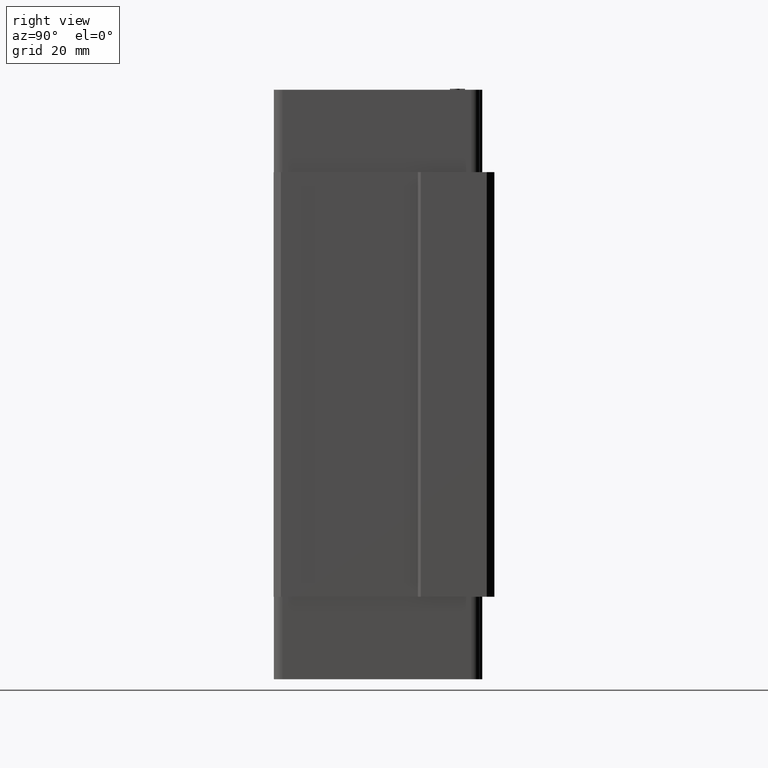
[diagram: clean part render]
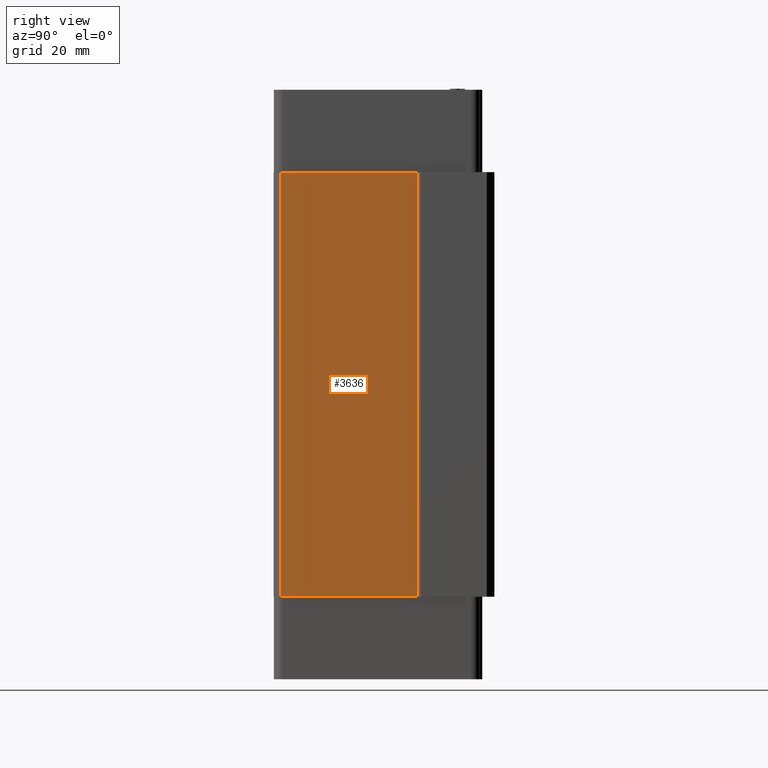
[diagram: same view with one face highlighted and labeled with its STEP entity id]
A machine part, right view. The second image highlights one B-rep face of the part: STEP entity #3636.
In plain terms, the highlighted planar face has unit normal (1, -0, 0).
Its self-contained STEP definition (entity closure, byte-faithful):
#3298 = VERTEX_POINT ( 'NONE', #10669 ) ;
#3301 = EDGE_CURVE ( 'NONE', #3306, #3298, #10664, .T. ) ;
#3306 = VERTEX_POINT ( 'NONE', #10660 ) ;
#3566 = EDGE_LOOP ( 'NONE', ( #3642, #3638, #3637, #3635 ) ) ;
#3588 = VERTEX_POINT ( 'NONE', #11190 ) ;
#3631 = EDGE_CURVE ( 'NONE', #3640, #3298, #11258, .T. ) ;
#3635 = ORIENTED_EDGE ( 'NONE', *, *, #3631, .F. ) ;
#3636 = ADVANCED_FACE ( 'NONE', ( #11248 ), #11247, .T. ) ;
#3637 = ORIENTED_EDGE ( 'NONE', *, *, #3301, .T. ) ;
#3638 = ORIENTED_EDGE ( 'NONE', *, *, #3639, .T. ) ;
#3639 = EDGE_CURVE ( 'NONE', #3588, #3306, #11242, .T. ) ;
#3640 = VERTEX_POINT ( 'NONE', #11238 ) ;
#3641 = EDGE_CURVE ( 'NONE', #3640, #3588, #11237, .T. ) ;
#3642 = ORIENTED_EDGE ( 'NONE', *, *, #3641, .T. ) ;
#10660 = CARTESIAN_POINT ( 'NONE',  ( 62.00000000000052600, 11.00000000000001100, -72.09999999999999400 ) ) ;
#10661 = DIRECTION ( 'NONE',  ( 0.0000000000000000000, 0.0000000000000000000, 1.000000000000000000 ) ) ;
#10662 = VECTOR ( 'NONE', #10661, 1000.000000000000000 ) ;
#10663 = CARTESIAN_POINT ( 'NONE',  ( 62.00000000000210300, 11.00000000000001100, -72.09999999999999400 ) ) ;
#10664 = LINE ( 'NONE', #10663, #10662 ) ;
#10669 = CARTESIAN_POINT ( 'NONE',  ( 62.00000000000052600, 11.00000000000001100, 72.10000000000003700 ) ) ;
#11190 = CARTESIAN_POINT ( 'NONE',  ( 61.99977932547999900, -35.50107541158883600, -72.09999999999999400 ) ) ;
#11234 = DIRECTION ( 'NONE',  ( 0.0000000000000000000, 0.0000000000000000000, -1.000000000000000000 ) ) ;
#11235 = VECTOR ( 'NONE', #11234, 1000.000000000000000 ) ;
#11236 = CARTESIAN_POINT ( 'NONE',  ( 61.99977932547999900, -35.50107541159000800, -72.09999999999999400 ) ) ;
#11237 = LINE ( 'NONE', #11236, #11235 ) ;
#11238 = CARTESIAN_POINT ( 'NONE',  ( 61.99977932548000600, -35.50107541158883600, 72.09999999999999400 ) ) ;
#11239 = DIRECTION ( 'NONE',  ( 4.745578850421396400E-006, 0.9999999999887396700, 0.0000000000000000000 ) ) ;
#11240 = VECTOR ( 'NONE', #11239, 1000.000000000000200 ) ;
#11241 = CARTESIAN_POINT ( 'NONE',  ( 61.99977932547999900, -35.50107541159000800, -72.09999999999999400 ) ) ;
#11242 = LINE ( 'NONE', #11241, #11240 ) ;
#11243 = DIRECTION ( 'NONE',  ( 4.745578895578189900E-006, 0.9999999999887396700, 0.0000000000000000000 ) ) ;
#11244 = DIRECTION ( 'NONE',  ( 0.9999999999887397900, -4.745578895578190800E-006, 0.0000000000000000000 ) ) ;
#11245 = CARTESIAN_POINT ( 'NONE',  ( 61.99977932547999900, -35.50107541159000800, -72.09999999999999400 ) ) ;
#11246 = AXIS2_PLACEMENT_3D ( 'NONE', #11245, #11244, #11243 ) ;
#11247 = PLANE ( 'NONE',  #11246 ) ;
#11248 = FACE_OUTER_BOUND ( 'NONE', #3566, .T. ) ;
#11255 = DIRECTION ( 'NONE',  ( 4.745578850421396400E-006, 0.9999999999887396700, 0.0000000000000000000 ) ) ;
#11256 = VECTOR ( 'NONE', #11255, 1000.000000000000200 ) ;
#11257 = CARTESIAN_POINT ( 'NONE',  ( 61.99977932547999900, -35.50107541159000800, 72.09999999999999400 ) ) ;
#11258 = LINE ( 'NONE', #11257, #11256 ) ;